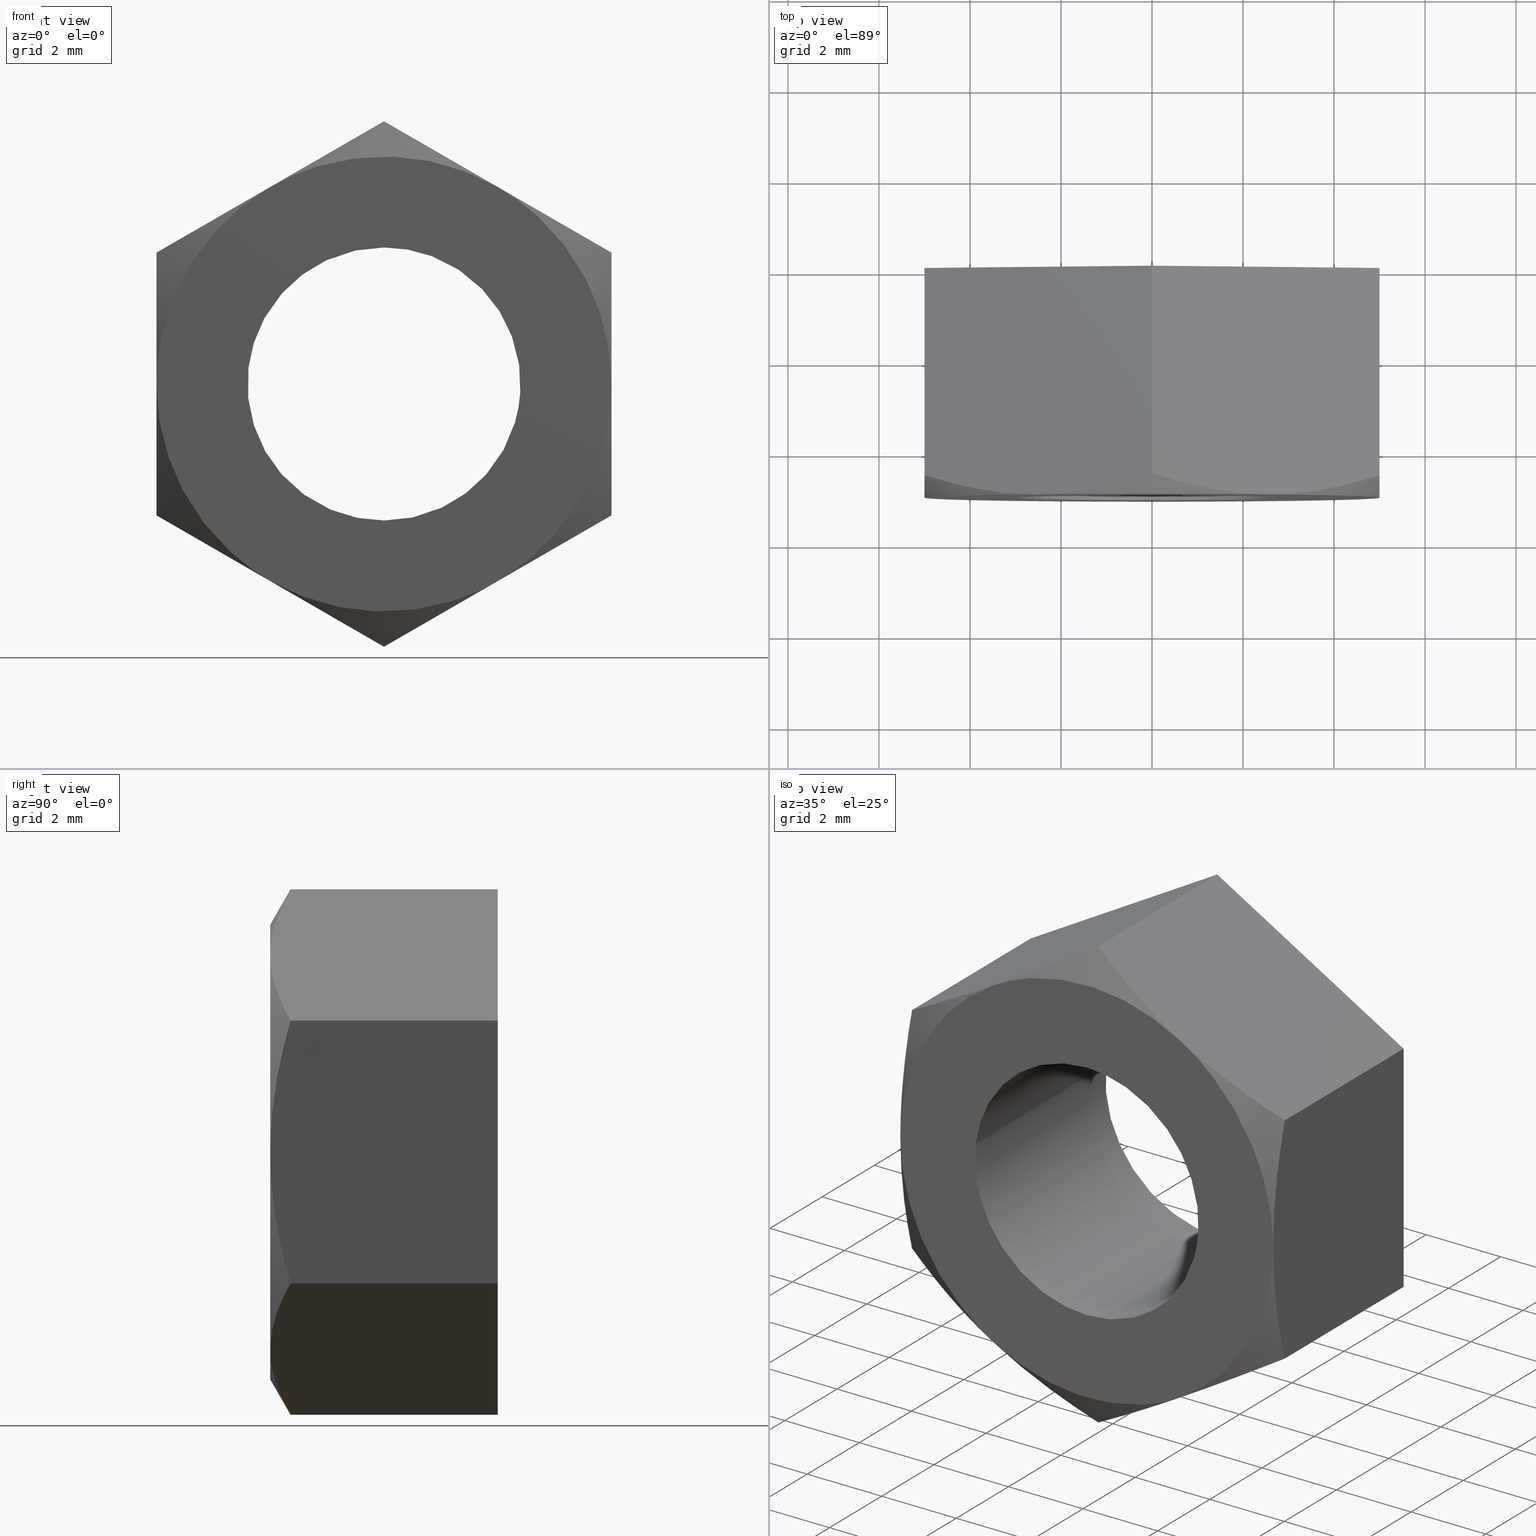
[diagram: canonical four-view strip — front | top / right | iso, engineering-drawing reading convention]
A machine part, canonical four-view strip (front | top / right | iso — engineering-drawing reading convention). The complete STEP part file that produces these views, byte-faithful:
ISO-10303-21;
HEADER;
/****************************************************************
 * Generated by software with PDE/Lib inside                    *
 * PDElib Version 4.4.1-0003, patched  Thursday August 19 11:58 *
 * International Technegroup Inc. (www.iti-oh.com)              *
 ****************************************************************/
FILE_DESCRIPTION((''),'2;1');
FILE_NAME('','2005-07-15T17:29:00',(''),(''),'','CADfix','');
FILE_SCHEMA(('AUTOMOTIVE_DESIGN'));
ENDSEC;
DATA;
#5=APPLICATION_CONTEXT('automotive design');
#6=APPLICATION_PROTOCOL_DEFINITION('Draft International Standard','automotive_design',1998,#5);
#7=PRODUCT_CONTEXT('None',#5,'mechanical');
#8=PRODUCT('nut','','None',(#7));
#9=PRODUCT_RELATED_PRODUCT_CATEGORY('part','description',(#8));
#10=PRODUCT_DEFINITION_FORMATION('None','None',#8);
#11=PRODUCT_DEFINITION_CONTEXT('part definition',#5,'design');
#12=PRODUCT_DEFINITION('None','None',#10,#11);
#18=(NAMED_UNIT(*)PLANE_ANGLE_UNIT()SI_UNIT($,.RADIAN.));
#19=DIMENSIONAL_EXPONENTS(0.0,0.0,0.0,0.0,0.0,0.0,0.0);
#20=PLANE_ANGLE_MEASURE_WITH_UNIT(PLANE_ANGLE_MEASURE(0.017453292500000),#18);
#24=(CONVERSION_BASED_UNIT('DEGREE',#20)NAMED_UNIT(#19)PLANE_ANGLE_UNIT());
#28=(NAMED_UNIT(*)SI_UNIT($,.STERADIAN.)SOLID_ANGLE_UNIT());
#32=(LENGTH_UNIT()NAMED_UNIT(*)SI_UNIT(.MILLI.,.METRE.));
#34=UNCERTAINTY_MEASURE_WITH_UNIT(LENGTH_MEASURE(0.001000000000000),#32,'DISTANCE_ACCURACY_VALUE','');
#36=(GEOMETRIC_REPRESENTATION_CONTEXT(3)GLOBAL_UNCERTAINTY_ASSIGNED_CONTEXT((#34))GLOBAL_UNIT_ASSIGNED_CONTEXT((#24,#28,#32))REPRESENTATION_CONTEXT('None','None'));
#37=AXIS2_PLACEMENT_3D('',#38,#39,#40);
#38=CARTESIAN_POINT('',(0.0,0.0,0.0));
#39=DIRECTION('',(0.0,0.0,1.0));
#40=DIRECTION('',(1.0,0.0,0.0));
#41=ADVANCED_BREP_SHAPE_REPRESENTATION('',(#37,#773),#36);
#42=PRODUCT_DEFINITION_SHAPE('','',#12);
#43=SHAPE_DEFINITION_REPRESENTATION(#42,#41);
#44=CARTESIAN_POINT('',(-2.979028579091000,0.125000000000000,0.354102703970275));
#45=CARTESIAN_POINT('',(-2.989162846345817,0.125000000000000,0.268844185913933));
#46=CARTESIAN_POINT('',(-2.994404395265600,0.125000000000000,0.183145618604571));
#47=CARTESIAN_POINT('',(-3.177550013870171,0.125000000000000,-2.811258776661029));
#48=CARTESIAN_POINT('',(-0.183145618604571,0.125000000000000,-2.994404395265600));
#49=CARTESIAN_POINT('',(2.811258776661029,0.125000000000000,-3.177550013870171));
#50=CARTESIAN_POINT('',(2.994404395265600,0.125000000000000,-0.183145618604571));
#51=CARTESIAN_POINT('',(-2.979028579091000,-5.128125000000002,0.354102703970275));
#52=CARTESIAN_POINT('',(-2.989162846345817,-5.128125000000001,0.268844185913933));
#53=CARTESIAN_POINT('',(-2.994404395265600,-5.128125000000001,0.183145618604571));
#54=CARTESIAN_POINT('',(-3.177550013870171,-5.128125000000001,-2.811258776661029));
#55=CARTESIAN_POINT('',(-0.183145618604571,-5.128125000000001,-2.994404395265600));
#56=CARTESIAN_POINT('',(2.811258776661029,-5.128125000000001,-3.177550013870171));
#57=CARTESIAN_POINT('',(2.994404395265600,-5.128125000000001,-0.183145618604571));
#65=(BOUNDED_SURFACE()B_SPLINE_SURFACE(2,1,((#44,#51),(#45,#52),(#46,#53),(#47,#54),(#48,#55),(#49,#56),(#50,#57)),.UNSPECIFIED.,.F.,.F.,.U.)B_SPLINE_SURFACE_WITH_KNOTS((3,2,2,3),(2,2),(0.0,0.198822509939086,5.169385258416225,10.139948006893370),(0.0,5.253125000000002),.UNSPECIFIED.)GEOMETRIC_REPRESENTATION_ITEM()RATIONAL_B_SPLINE_SURFACE(((0.977505800795127,0.977505800795127),(0.988284271247462,0.988284271247462),(1.0,1.0),(0.707106781186548,0.707106781186548),(1.0,1.0),(0.707106781186548,0.707106781186548),(1.0,1.0)))REPRESENTATION_ITEM('')SURFACE());
#66=CARTESIAN_POINT('',(-2.979029048847217,-3.904214E-015,0.354098751916197));
#67=VERTEX_POINT('',#66);
#68=CARTESIAN_POINT('',(0.0,0.0,-3.0));
#69=VERTEX_POINT('',#68);
#70=CARTESIAN_POINT('',(-2.979029048847217,-3.904214E-015,0.354098751916197));
#71=CARTESIAN_POINT('',(-3.0,0.0,0.177670362038779));
#72=CARTESIAN_POINT('',(-3.0,0.0,0.0));
#73=CARTESIAN_POINT('',(-3.0,0.0,-3.0));
#74=CARTESIAN_POINT('',(0.0,0.0,-3.0));
#82=(BOUNDED_CURVE()B_SPLINE_CURVE(2,(#70,#71,#72,#73,#74),.UNSPECIFIED.,.F.,.U.)B_SPLINE_CURVE_WITH_KNOTS((3,2,3),(0.229562697719614,0.250000000000000,0.500000000000000),.UNSPECIFIED.)CURVE()GEOMETRIC_REPRESENTATION_ITEM()RATIONAL_B_SPLINE_CURVE((0.956027193637312,0.976056211004937,1.0,0.707106781186548,1.0))REPRESENTATION_ITEM(''));
#83=EDGE_CURVE('',#67,#69,#82,.T.);
#84=ORIENTED_EDGE('',*,*,#83,.F.);
#85=CARTESIAN_POINT('',(-2.979029043188417,-5.0,0.354098799524145));
#86=VERTEX_POINT('',#85);
#87=CARTESIAN_POINT('',(-2.979029048847217,-3.904214E-015,0.354098751916197));
#88=CARTESIAN_POINT('',(-2.979029043188417,-5.0,0.354098799524145));
#89=QUASI_UNIFORM_CURVE('',1,(#87,#88),.UNSPECIFIED.,.F.,.U.);
#90=EDGE_CURVE('',#67,#86,#89,.T.);
#91=ORIENTED_EDGE('',*,*,#90,.T.);
#92=CARTESIAN_POINT('',(0.0,-5.0,-3.0));
#93=VERTEX_POINT('',#92);
#94=CARTESIAN_POINT('',(-2.979029043188417,-5.0,0.354098799524145));
#95=CARTESIAN_POINT('',(-3.000000000000000,-5.0,0.177670386094396));
#96=CARTESIAN_POINT('',(-3.0,-5.0,0.0));
#97=CARTESIAN_POINT('',(-3.0,-5.000000000000001,-3.0));
#98=CARTESIAN_POINT('',(0.0,-5.0,-3.0));
#106=(BOUNDED_CURVE()B_SPLINE_CURVE(2,(#94,#95,#96,#97,#98),.UNSPECIFIED.,.F.,.U.)B_SPLINE_CURVE_WITH_KNOTS((3,2,3),(0.229562695018767,0.250000000000000,0.500000000000000),.UNSPECIFIED.)CURVE()GEOMETRIC_REPRESENTATION_ITEM()RATIONAL_B_SPLINE_CURVE((0.956027188343531,0.976056207840698,1.0,0.707106781186548,1.0))REPRESENTATION_ITEM(''));
#107=EDGE_CURVE('',#86,#93,#106,.T.);
#108=ORIENTED_EDGE('',*,*,#107,.T.);
#109=CARTESIAN_POINT('',(2.994404452998527,-5.0,-0.183144674674689));
#110=VERTEX_POINT('',#109);
#111=CARTESIAN_POINT('',(0.0,-5.0,-3.0));
#112=CARTESIAN_POINT('',(2.822119983282192,-5.0,-3.0));
#113=CARTESIAN_POINT('',(2.994404452998527,-5.000000000000001,-0.183144674674689));
#121=(BOUNDED_CURVE()B_SPLINE_CURVE(2,(#111,#112,#113),.UNSPECIFIED.,.F.,.U.)B_SPLINE_CURVE_WITH_KNOTS((3,3),(0.500000000000000,0.739333071026264),.UNSPECIFIED.)CURVE()GEOMETRIC_REPRESENTATION_ITEM()RATIONAL_B_SPLINE_CURVE((1.0,0.719603865834435,0.976072274818767))REPRESENTATION_ITEM(''));
#122=EDGE_CURVE('',#93,#110,#121,.T.);
#123=ORIENTED_EDGE('',*,*,#122,.T.);
#124=CARTESIAN_POINT('',(2.994404453701684,-1.568190E-015,-0.183144663178055));
#125=VERTEX_POINT('',#124);
#126=CARTESIAN_POINT('',(2.994404453701684,-1.568190E-015,-0.183144663178055));
#127=CARTESIAN_POINT('',(2.994404452998527,-5.0,-0.183144674674689));
#128=QUASI_UNIFORM_CURVE('',1,(#126,#127),.UNSPECIFIED.,.F.,.U.);
#129=EDGE_CURVE('',#125,#110,#128,.T.);
#130=ORIENTED_EDGE('',*,*,#129,.F.);
#131=CARTESIAN_POINT('',(0.0,0.0,-3.0));
#132=CARTESIAN_POINT('',(2.822120004993013,0.0,-3.000000000000001));
#133=CARTESIAN_POINT('',(2.994404453701684,-1.568190E-015,-0.183144663178055));
#141=(BOUNDED_CURVE()B_SPLINE_CURVE(2,(#131,#132,#133),.UNSPECIFIED.,.F.,.U.)B_SPLINE_CURVE_WITH_KNOTS((3,3),(0.500000000000000,0.739333072351207),.UNSPECIFIED.)CURVE()GEOMETRIC_REPRESENTATION_ITEM()RATIONAL_B_SPLINE_CURVE((1.0,0.719603864282169,0.976072277658373))REPRESENTATION_ITEM(''));
#142=EDGE_CURVE('',#69,#125,#141,.T.);
#143=ORIENTED_EDGE('',*,*,#142,.F.);
#144=EDGE_LOOP('',(#84,#91,#108,#123,#130,#143));
#145=FACE_OUTER_BOUND('',#144,.T.);
#146=ADVANCED_FACE('',(#145),#65,.F.);
#147=CARTESIAN_POINT('',(2.994404395265600,0.125000000000000,-0.183145618604571));
#148=CARTESIAN_POINT('',(3.177550013870171,0.125000000000000,2.811258776661029));
#149=CARTESIAN_POINT('',(0.183145618604571,0.125000000000000,2.994404395265600));
#150=CARTESIAN_POINT('',(-2.644630472518504,0.125000000000000,3.167358590197582));
#151=CARTESIAN_POINT('',(-2.979028579091000,0.125000000000000,0.354102703970275));
#152=CARTESIAN_POINT('',(2.994404395265600,-5.128125000000001,-0.183145618604571));
#153=CARTESIAN_POINT('',(3.177550013870171,-5.128125000000001,2.811258776661029));
#154=CARTESIAN_POINT('',(0.183145618604571,-5.128125000000001,2.994404395265600));
#155=CARTESIAN_POINT('',(-2.644630472518504,-5.128125000000000,3.167358590197582));
#156=CARTESIAN_POINT('',(-2.979028579091000,-5.128125000000002,0.354102703970275));
#164=(BOUNDED_SURFACE()B_SPLINE_SURFACE(2,1,((#147,#152),(#148,#153),(#149,#154),(#150,#155),(#151,#156)),.UNSPECIFIED.,.F.,.F.,.U.)B_SPLINE_SURFACE_WITH_KNOTS((3,2,3),(2,2),(0.0,4.970562748477139,9.742302987015194),(0.0,5.253125000000002),.UNSPECIFIED.)GEOMETRIC_REPRESENTATION_ITEM()RATIONAL_B_SPLINE_SURFACE(((1.0,1.0),(0.707106781186548,0.707106781186548),(1.0,1.0),(0.718822509939086,0.718822509939086),(0.977505800795127,0.977505800795127)))REPRESENTATION_ITEM('')SURFACE());
#165=CARTESIAN_POINT('',(0.0,0.0,3.0));
#166=VERTEX_POINT('',#165);
#167=CARTESIAN_POINT('',(0.0,0.0,3.0));
#168=CARTESIAN_POINT('',(-2.664527137563535,0.0,3.0));
#169=CARTESIAN_POINT('',(-2.979029048847217,-3.904214E-015,0.354098751916197));
#177=(BOUNDED_CURVE()B_SPLINE_CURVE(2,(#167,#168,#169),.UNSPECIFIED.,.F.,.U.)B_SPLINE_CURVE_WITH_KNOTS((3,3),(0.0,0.229562697719614),.UNSPECIFIED.)CURVE()GEOMETRIC_REPRESENTATION_ITEM()RATIONAL_B_SPLINE_CURVE((1.0,0.731050570181611,0.956027193637312))REPRESENTATION_ITEM(''));
#178=EDGE_CURVE('',#166,#67,#177,.T.);
#179=ORIENTED_EDGE('',*,*,#178,.F.);
#180=CARTESIAN_POINT('',(2.994404453701684,-1.568190E-015,-0.183144663178055));
#181=CARTESIAN_POINT('',(3.0,0.0,-0.091657331790355));
#182=CARTESIAN_POINT('',(3.0,0.0,0.0));
#183=CARTESIAN_POINT('',(3.0,0.0,3.0));
#184=CARTESIAN_POINT('',(0.0,0.0,3.0));
#192=(BOUNDED_CURVE()B_SPLINE_CURVE(2,(#180,#181,#182,#183,#184),.UNSPECIFIED.,.F.,.U.)B_SPLINE_CURVE_WITH_KNOTS((3,2,3),(0.739333072351208,0.750000000000000,1.0),.UNSPECIFIED.)CURVE()GEOMETRIC_REPRESENTATION_ITEM()RATIONAL_B_SPLINE_CURVE((0.976072277658375,0.987502916904380,1.0,0.707106781186548,1.0))REPRESENTATION_ITEM(''));
#193=EDGE_CURVE('',#125,#166,#192,.T.);
#194=ORIENTED_EDGE('',*,*,#193,.F.);
#195=ORIENTED_EDGE('',*,*,#129,.T.);
#196=CARTESIAN_POINT('',(0.0,-5.0,3.0));
#197=VERTEX_POINT('',#196);
#198=CARTESIAN_POINT('',(2.994404452998527,-5.0,-0.183144674674689));
#199=CARTESIAN_POINT('',(3.000000000000000,-5.0,-0.091657343319225));
#200=CARTESIAN_POINT('',(3.0,-5.0,0.0));
#201=CARTESIAN_POINT('',(3.0,-5.000000000000001,3.0));
#202=CARTESIAN_POINT('',(0.0,-5.0,3.0));
#210=(BOUNDED_CURVE()B_SPLINE_CURVE(2,(#198,#199,#200,#201,#202),.UNSPECIFIED.,.F.,.U.)B_SPLINE_CURVE_WITH_KNOTS((3,2,3),(0.739333071026264,0.750000000000000,1.0),.UNSPECIFIED.)CURVE()GEOMETRIC_REPRESENTATION_ITEM()RATIONAL_B_SPLINE_CURVE((0.976072274818767,0.987502915352112,1.0,0.707106781186548,1.0))REPRESENTATION_ITEM(''));
#211=EDGE_CURVE('',#110,#197,#210,.T.);
#212=ORIENTED_EDGE('',*,*,#211,.T.);
#213=CARTESIAN_POINT('',(0.0,-5.0,3.0));
#214=CARTESIAN_POINT('',(-2.664527094681900,-5.0,3.000000000000000));
#215=CARTESIAN_POINT('',(-2.979029043188417,-5.0,0.354098799524145));
#223=(BOUNDED_CURVE()B_SPLINE_CURVE(2,(#213,#214,#215),.UNSPECIFIED.,.F.,.U.)B_SPLINE_CURVE_WITH_KNOTS((3,3),(0.0,0.229562695018767),.UNSPECIFIED.)CURVE()GEOMETRIC_REPRESENTATION_ITEM()RATIONAL_B_SPLINE_CURVE((1.0,0.731050573345850,0.956027188343531))REPRESENTATION_ITEM(''));
#224=EDGE_CURVE('',#197,#86,#223,.T.);
#225=ORIENTED_EDGE('',*,*,#224,.T.);
#226=ORIENTED_EDGE('',*,*,#90,.F.);
#227=EDGE_LOOP('',(#179,#194,#195,#212,#225,#226));
#228=FACE_OUTER_BOUND('',#227,.T.);
#229=ADVANCED_FACE('',(#228),#164,.F.);
#230=CARTESIAN_POINT('',(-5.499498035232104,0.0,6.350274189887204));
#231=CARTESIAN_POINT('',(-5.499498035232104,0.0,-6.350274602840212));
#232=CARTESIAN_POINT('',(5.499500156289713,0.0,6.350274189887204));
#233=CARTESIAN_POINT('',(5.499500156289713,0.0,-6.350274602840212));
#234=B_SPLINE_SURFACE_WITH_KNOTS('',1,1,((#230,#232),(#231,#233)),.UNSPECIFIED.,.F.,.F.,.U.,(2,2),(2,2),(0.0,12.700548792727419),(0.0,10.998998191521819),.UNSPECIFIED.);
#235=CARTESIAN_POINT('',(-4.999997968349340,0.0,2.886752518922210));
#236=VERTEX_POINT('',#235);
#237=CARTESIAN_POINT('',(-4.999997968349329,0.0,-2.886752518922215));
#238=VERTEX_POINT('',#237);
#239=CARTESIAN_POINT('',(-4.999997968349340,0.0,2.886752518922210));
#240=CARTESIAN_POINT('',(-4.999997968349329,0.0,-2.886752518922215));
#241=QUASI_UNIFORM_CURVE('',1,(#239,#240),.UNSPECIFIED.,.F.,.U.);
#242=EDGE_CURVE('',#236,#238,#241,.T.);
#243=ORIENTED_EDGE('',*,*,#242,.F.);
#244=CARTESIAN_POINT('',(0.000002031650682,0.0,5.773501518922211));
#245=VERTEX_POINT('',#244);
#246=CARTESIAN_POINT('',(0.000002031650682,0.0,5.773501518922211));
#247=CARTESIAN_POINT('',(-4.999997968349340,0.0,2.886752518922210));
#248=QUASI_UNIFORM_CURVE('',1,(#246,#247),.UNSPECIFIED.,.F.,.U.);
#249=EDGE_CURVE('',#245,#236,#248,.T.);
#250=ORIENTED_EDGE('',*,*,#249,.F.);
#251=CARTESIAN_POINT('',(5.0,0.0,2.886749000000000));
#252=VERTEX_POINT('',#251);
#253=CARTESIAN_POINT('',(5.0,0.0,2.886749000000000));
#254=CARTESIAN_POINT('',(0.000002031650682,0.0,5.773501518922211));
#255=QUASI_UNIFORM_CURVE('',1,(#253,#254),.UNSPECIFIED.,.F.,.U.);
#256=EDGE_CURVE('',#252,#245,#255,.T.);
#257=ORIENTED_EDGE('',*,*,#256,.F.);
#258=CARTESIAN_POINT('',(4.999997968349340,0.0,-2.886752518922210));
#259=VERTEX_POINT('',#258);
#260=CARTESIAN_POINT('',(4.999997968349340,0.0,-2.886752518922210));
#261=CARTESIAN_POINT('',(5.0,0.0,2.886749000000000));
#262=QUASI_UNIFORM_CURVE('',1,(#260,#261),.UNSPECIFIED.,.F.,.U.);
#263=EDGE_CURVE('',#259,#252,#262,.T.);
#264=ORIENTED_EDGE('',*,*,#263,.F.);
#265=CARTESIAN_POINT('',(-0.000002031650684,0.0,-5.773501518922211));
#266=VERTEX_POINT('',#265);
#267=CARTESIAN_POINT('',(-0.000002031650684,0.0,-5.773501518922211));
#268=CARTESIAN_POINT('',(4.999997968349340,0.0,-2.886752518922210));
#269=QUASI_UNIFORM_CURVE('',1,(#267,#268),.UNSPECIFIED.,.F.,.U.);
#270=EDGE_CURVE('',#266,#259,#269,.T.);
#271=ORIENTED_EDGE('',*,*,#270,.F.);
#272=CARTESIAN_POINT('',(-4.999997968349329,0.0,-2.886752518922215));
#273=CARTESIAN_POINT('',(-0.000002031650684,0.0,-5.773501518922211));
#274=QUASI_UNIFORM_CURVE('',1,(#272,#273),.UNSPECIFIED.,.F.,.U.);
#275=EDGE_CURVE('',#238,#266,#274,.T.);
#276=ORIENTED_EDGE('',*,*,#275,.F.);
#277=EDGE_LOOP('',(#243,#250,#257,#264,#271,#276));
#278=FACE_OUTER_BOUND('',#277,.T.);
#279=ORIENTED_EDGE('',*,*,#142,.T.);
#280=ORIENTED_EDGE('',*,*,#193,.T.);
#281=ORIENTED_EDGE('',*,*,#178,.T.);
#282=ORIENTED_EDGE('',*,*,#83,.T.);
#283=EDGE_LOOP('',(#279,#280,#281,#282));
#284=FACE_BOUND('',#283,.T.);
#285=ADVANCED_FACE('',(#278,#284),#234,.F.);
#286=CARTESIAN_POINT('',(0.249750680943751,-5.249749990309030,-5.917696314769450));
#287=CARTESIAN_POINT('',(-5.249750859757750,-5.249749990309030,-2.742557619836676));
#288=CARTESIAN_POINT('',(0.249750680943751,0.249750124419481,-5.917696314769450));
#289=CARTESIAN_POINT('',(-5.249750859757750,0.249750124419481,-2.742557619836676));
#290=B_SPLINE_SURFACE_WITH_KNOTS('',1,1,((#286,#288),(#287,#289)),.UNSPECIFIED.,.F.,.F.,.U.,(2,2),(2,2),(0.0,6.350277389865546),(0.0,5.499500114728511),.UNSPECIFIED.);
#291=CARTESIAN_POINT('',(-0.000002031652880,-4.553409602993680,-5.773507759460920));
#292=VERTEX_POINT('',#291);
#293=CARTESIAN_POINT('',(-2.500000000000000,-5.0,-4.330127018922216));
#294=VERTEX_POINT('',#293);
#295=CARTESIAN_POINT('',(-0.000002031652880,-4.553409602993680,-5.773507759460920));
#296=CARTESIAN_POINT('',(-0.408203912893516,-4.689478620133048,-5.537831253856557));
#297=CARTESIAN_POINT('',(-0.819382131306384,-4.801624442180716,-5.300436359742333));
#298=CARTESIAN_POINT('',(-1.442581488690351,-4.918143823333554,-4.940630485660208));
#299=CARTESIAN_POINT('',(-1.651389183835703,-4.948346392766203,-4.820074787747974));
#300=CARTESIAN_POINT('',(-2.071436573135649,-4.989203616394015,-4.577559277096571));
#301=CARTESIAN_POINT('',(-2.282678368845466,-4.999841378714153,-4.455598251024326));
#302=CARTESIAN_POINT('',(-2.496815957580813,-4.999999419169799,-4.331965334432526));
#303=CARTESIAN_POINT('',(-2.498407920093585,-5.000000004344116,-4.331046210566043));
#304=CARTESIAN_POINT('',(-2.500000000000000,-5.0,-4.330127018922216));
#305=B_SPLINE_CURVE_WITH_KNOTS('',3,(#295,#296,#297,#298,#299,#300,#301,#302,#303,#304),.UNSPECIFIED.,.F.,.U.,(4,2,2,2,4),(0.0,0.250000000000000,0.375000000000000,0.500000000000000,0.500936175918565),.UNSPECIFIED.);
#306=EDGE_CURVE('',#292,#294,#305,.T.);
#307=ORIENTED_EDGE('',*,*,#306,.T.);
#308=CARTESIAN_POINT('',(-5.000003372813290,-4.553409602993680,-2.886755639193470));
#309=VERTEX_POINT('',#308);
#310=CARTESIAN_POINT('',(-2.500000000000000,-5.0,-4.330127018922216));
#311=CARTESIAN_POINT('',(-2.604696918892965,-4.999999141939918,-4.269680479853555));
#312=CARTESIAN_POINT('',(-2.709901508793534,-4.997448906623655,-4.208940838862293));
#313=CARTESIAN_POINT('',(-2.920962553253226,-4.987251126109239,-4.087085205897683));
#314=CARTESIAN_POINT('',(-3.026919978143381,-4.979538526477759,-4.025910918943936));
#315=CARTESIAN_POINT('',(-3.343731949500059,-4.949009382118800,-3.843000224315569));
#316=CARTESIAN_POINT('',(-3.553523713761450,-4.918784211642863,-3.721877414062005));
#317=CARTESIAN_POINT('',(-4.179163917903638,-4.802071499223087,-3.360665437132666));
#318=CARTESIAN_POINT('',(-4.591291823068294,-4.689648211307102,-3.122724321577582));
#319=CARTESIAN_POINT('',(-5.000003372813290,-4.553409602993680,-2.886755639193470));
#320=B_SPLINE_CURVE_WITH_KNOTS('',3,(#310,#311,#312,#313,#314,#315,#316,#317,#318,#319),.UNSPECIFIED.,.F.,.U.,(4,2,2,2,4),(0.500936175918565,0.562500000000000,0.625000000000000,0.750000000000000,1.0),.UNSPECIFIED.);
#321=EDGE_CURVE('',#294,#309,#320,.T.);
#322=ORIENTED_EDGE('',*,*,#321,.T.);
#323=CARTESIAN_POINT('',(-4.999997968349329,0.0,-2.886752518922215));
#324=CARTESIAN_POINT('',(-5.000003372813290,-4.553409602993680,-2.886755639193470));
#325=QUASI_UNIFORM_CURVE('',1,(#323,#324),.UNSPECIFIED.,.F.,.U.);
#326=EDGE_CURVE('',#238,#309,#325,.T.);
#327=ORIENTED_EDGE('',*,*,#326,.F.);
#328=ORIENTED_EDGE('',*,*,#275,.T.);
#329=CARTESIAN_POINT('',(-0.000002031650684,0.0,-5.773501518922211));
#330=CARTESIAN_POINT('',(-0.000002031652880,-4.553409602993680,-5.773507759460920));
#331=QUASI_UNIFORM_CURVE('',1,(#329,#330),.UNSPECIFIED.,.F.,.U.);
#332=EDGE_CURVE('',#266,#292,#331,.T.);
#333=ORIENTED_EDGE('',*,*,#332,.T.);
#334=EDGE_LOOP('',(#307,#322,#327,#328,#333));
#335=FACE_OUTER_BOUND('',#334,.T.);
#336=ADVANCED_FACE('',(#335),#290,.T.);
#337=CARTESIAN_POINT('',(5.249750815301801,-5.249749990309030,-2.742557645503335));
#338=CARTESIAN_POINT('',(-0.249753683967008,-5.249749990309030,-5.917698048565737));
#339=CARTESIAN_POINT('',(5.249750815301801,0.249750124419481,-2.742557645503335));
#340=CARTESIAN_POINT('',(-0.249753683967008,0.249750124419481,-5.917698048565737));
#341=B_SPLINE_SURFACE_WITH_KNOTS('',1,1,((#337,#339),(#338,#340)),.UNSPECIFIED.,.F.,.F.,.U.,(2,2),(2,2),(0.0,6.350280806124809),(0.0,5.499500114728511),.UNSPECIFIED.);
#342=CARTESIAN_POINT('',(5.000003372813290,-4.553409602993680,-2.886755639193465));
#343=VERTEX_POINT('',#342);
#344=CARTESIAN_POINT('',(2.500000000000000,-5.0,-4.330127018922216));
#345=VERTEX_POINT('',#344);
#346=CARTESIAN_POINT('',(5.000003372813290,-4.553409602993680,-2.886755639193465));
#347=CARTESIAN_POINT('',(4.591800351519336,-4.689478700047564,-3.122430723834567));
#348=CARTESIAN_POINT('',(4.180620990038048,-4.801624573892675,-3.359824199841751));
#349=CARTESIAN_POINT('',(3.557419910390354,-4.918143962773445,-3.719627953597012));
#350=CARTESIAN_POINT('',(3.348611639876511,-4.948346523087345,-3.840182945875693));
#351=CARTESIAN_POINT('',(2.928563096943392,-4.989203702026397,-4.082697047843556));
#352=CARTESIAN_POINT('',(2.717320722964078,-4.999841428735054,-4.204657370869383));
#353=CARTESIAN_POINT('',(2.503183050407779,-4.999999419531586,-4.328289291672485));
#354=CARTESIAN_POINT('',(2.501591583864261,-5.000000004340188,-4.329208121429816));
#355=CARTESIAN_POINT('',(2.500000000000000,-5.0,-4.330127018922216));
#356=B_SPLINE_CURVE_WITH_KNOTS('',3,(#346,#347,#348,#349,#350,#351,#352,#353,#354,#355),.UNSPECIFIED.,.F.,.U.,(4,2,2,2,4),(0.0,0.250000000000000,0.374999999999999,0.499999999999999,0.500935881726906),.UNSPECIFIED.);
#357=EDGE_CURVE('',#343,#345,#356,.T.);
#358=ORIENTED_EDGE('',*,*,#357,.T.);
#359=CARTESIAN_POINT('',(2.500000000000000,-5.0,-4.330127018922216));
#360=CARTESIAN_POINT('',(2.395302691109973,-4.999999180456554,-4.390574197682315));
#361=CARTESIAN_POINT('',(2.290097704329303,-4.997448956096080,-4.451314485701285));
#362=CARTESIAN_POINT('',(2.079036388718640,-4.987251169289275,-4.573171116276703));
#363=CARTESIAN_POINT('',(1.973079080158117,-4.979538576180672,-4.634345759674650));
#364=CARTESIAN_POINT('',(1.656267459934279,-4.949009445233116,-4.817257522120471));
#365=CARTESIAN_POINT('',(1.446475932618204,-4.918784275521857,-4.938381042232555));
#366=CARTESIAN_POINT('',(0.820836445799986,-4.802071551126016,-5.299595144014635));
#367=CARTESIAN_POINT('',(0.408709027332946,-4.689648237257094,-5.537537669942531));
#368=CARTESIAN_POINT('',(-0.000002031652880,-4.553409602993680,-5.773507759460920));
#369=B_SPLINE_CURVE_WITH_KNOTS('',3,(#359,#360,#361,#362,#363,#364,#365,#366,#367,#368),.UNSPECIFIED.,.F.,.U.,(4,2,2,2,4),(0.500935881726906,0.562499999999999,0.624999999999999,0.749999999999999,1.0),.UNSPECIFIED.);
#370=EDGE_CURVE('',#345,#292,#369,.T.);
#371=ORIENTED_EDGE('',*,*,#370,.T.);
#372=ORIENTED_EDGE('',*,*,#332,.F.);
#373=ORIENTED_EDGE('',*,*,#270,.T.);
#374=CARTESIAN_POINT('',(4.999997968349340,0.0,-2.886752518922210));
#375=CARTESIAN_POINT('',(5.000003372813290,-4.553409602993680,-2.886755639193465));
#376=QUASI_UNIFORM_CURVE('',1,(#374,#375),.UNSPECIFIED.,.F.,.U.);
#377=EDGE_CURVE('',#259,#343,#376,.T.);
#378=ORIENTED_EDGE('',*,*,#377,.T.);
#379=EDGE_LOOP('',(#358,#371,#372,#373,#378));
#380=FACE_OUTER_BOUND('',#379,.T.);
#381=ADVANCED_FACE('',(#380),#341,.T.);
#382=CARTESIAN_POINT('',(5.0,-5.249749990309030,3.175138821662350));
#383=CARTESIAN_POINT('',(5.0,-5.249749990309030,-3.175142495445905));
#384=CARTESIAN_POINT('',(5.0,0.249750124419480,3.175138821662350));
#385=CARTESIAN_POINT('',(5.0,0.249750124419480,-3.175142495445905));
#386=B_SPLINE_SURFACE_WITH_KNOTS('',1,1,((#382,#384),(#383,#385)),.UNSPECIFIED.,.F.,.F.,.U.,(2,2),(2,2),(0.0,6.350281317108255),(0.0,5.499500114728510),.UNSPECIFIED.);
#387=CARTESIAN_POINT('',(5.000005404466170,-4.553409602993680,2.886752120267455));
#388=VERTEX_POINT('',#387);
#389=CARTESIAN_POINT('',(5.0,-5.0,-8.673617E-016));
#390=VERTEX_POINT('',#389);
#391=CARTESIAN_POINT('',(5.000005404466170,-4.553409602993680,2.886752120267455));
#392=CARTESIAN_POINT('',(5.000004513169780,-4.688116607231213,2.420118757533514));
#393=CARTESIAN_POINT('',(5.000003617053969,-4.800307397922206,1.947366246797333));
#394=CARTESIAN_POINT('',(5.000002487831893,-4.898136896506681,1.344900274219635));
#395=CARTESIAN_POINT('',(5.000002261531787,-4.915573824749347,1.223828497007833));
#396=CARTESIAN_POINT('',(5.000001807941939,-4.945824113510175,0.980428412699836));
#397=CARTESIAN_POINT('',(5.000001580304323,-4.958651955178178,0.857912085975823));
#398=CARTESIAN_POINT('',(5.000000898153133,-4.989584399491625,0.489611514541412));
#399=CARTESIAN_POINT('',(5.000000447689589,-4.999974933069924,0.244848958079583));
#400=CARTESIAN_POINT('',(5.000000001057662,-4.999999984358408,0.000578459506291));
#401=CARTESIAN_POINT('',(5.000000000528828,-4.999999999459415,0.000289229204407));
#402=CARTESIAN_POINT('',(5.0,-5.0,-8.673617E-016));
#403=B_SPLINE_CURVE_WITH_KNOTS('',3,(#391,#392,#393,#394,#395,#396,#397,#398,#399,#400,#401,#402),.UNSPECIFIED.,.F.,.U.,(4,2,2,2,2,4),(0.499851816799926,0.749851816799926,0.812351816799926,0.874851816799926,0.999851816799926,1.0),.UNSPECIFIED.);
#404=EDGE_CURVE('',#388,#390,#403,.T.);
#405=ORIENTED_EDGE('',*,*,#404,.T.);
#406=CARTESIAN_POINT('',(5.0,-5.0,-8.673617E-016));
#407=CARTESIAN_POINT('',(5.000000278066759,-4.999999381140824,-0.243690208678995));
#408=CARTESIAN_POINT('',(5.000000557069144,-4.989662450478551,-0.486601332153735));
#409=CARTESIAN_POINT('',(5.000001117185601,-4.949305695528569,-0.971229237509199));
#410=CARTESIAN_POINT('',(5.000001398300466,-4.919277123627644,-1.212945360050677));
#411=CARTESIAN_POINT('',(5.000001962129272,-4.841554158489500,-1.695046068286999));
#412=CARTESIAN_POINT('',(5.000002244965130,-4.793852497305100,-1.935536373870069));
#413=CARTESIAN_POINT('',(5.000002811501803,-4.683430768834334,-2.414951643881277));
#414=CARTESIAN_POINT('',(5.000003092898107,-4.621197994619315,-2.651932379907174));
#415=CARTESIAN_POINT('',(5.000003372813290,-4.553409602993680,-2.886755639193465));
#416=B_SPLINE_CURVE_WITH_KNOTS('',3,(#406,#407,#408,#409,#410,#411,#412,#413,#414,#415),.UNSPECIFIED.,.F.,.U.,(4,2,2,2,4),(0.0,0.124851816799926,0.249851816799926,0.374851816799926,0.499851816799926),.UNSPECIFIED.);
#417=EDGE_CURVE('',#390,#343,#416,.T.);
#418=ORIENTED_EDGE('',*,*,#417,.T.);
#419=ORIENTED_EDGE('',*,*,#377,.F.);
#420=ORIENTED_EDGE('',*,*,#263,.T.);
#421=CARTESIAN_POINT('',(5.0,0.0,2.886749000000000));
#422=CARTESIAN_POINT('',(5.000005404466170,-4.553409602993680,2.886752120267455));
#423=QUASI_UNIFORM_CURVE('',1,(#421,#422),.UNSPECIFIED.,.F.,.U.);
#424=EDGE_CURVE('',#252,#388,#423,.T.);
#425=ORIENTED_EDGE('',*,*,#424,.T.);
#426=EDGE_LOOP('',(#405,#418,#419,#420,#425));
#427=FACE_OUTER_BOUND('',#426,.T.);
#428=ADVANCED_FACE('',(#427),#386,.T.);
#429=CARTESIAN_POINT('',(-0.249750815301782,-5.249749990309030,5.917696392341094));
#430=CARTESIAN_POINT('',(5.249753683967027,-5.249749990309030,2.742555989278689));
#431=CARTESIAN_POINT('',(-0.249750815301782,0.249750124419480,5.917696392341094));
#432=CARTESIAN_POINT('',(5.249753683967027,0.249750124419480,2.742555989278689));
#433=B_SPLINE_SURFACE_WITH_KNOTS('',1,1,((#429,#431),(#430,#432)),.UNSPECIFIED.,.F.,.F.,.U.,(2,2),(2,2),(0.0,6.350280806124809),(0.0,5.499500114728510),.UNSPECIFIED.);
#434=CARTESIAN_POINT('',(0.000002031652878,-4.553409602993680,5.773507759460920));
#435=VERTEX_POINT('',#434);
#436=CARTESIAN_POINT('',(2.500000000000000,-5.0,4.330127018922216));
#437=VERTEX_POINT('',#436);
#438=CARTESIAN_POINT('',(0.000002031652878,-4.553409602993680,5.773507759460920));
#439=CARTESIAN_POINT('',(0.408204149830436,-4.689478699111678,5.537831117060359));
#440=CARTESIAN_POINT('',(0.819382608637364,-4.801624572350189,5.300436084153955));
#441=CARTESIAN_POINT('',(1.442582335215381,-4.918143961140454,4.940629996916643));
#442=CARTESIAN_POINT('',(1.651390154863345,-4.948346521561144,4.820074227122492));
#443=CARTESIAN_POINT('',(2.071437796420834,-4.989203701023547,4.577558570829530));
#444=CARTESIAN_POINT('',(2.282679719890679,-4.999841428149256,4.455597470994699));
#445=CARTESIAN_POINT('',(2.496816944616442,-4.999999419527346,4.331964764564832));
#446=CARTESIAN_POINT('',(2.498408413647471,-5.000000004340231,4.331045925611371));
#447=CARTESIAN_POINT('',(2.500000000000000,-5.0,4.330127018922216));
#448=B_SPLINE_CURVE_WITH_KNOTS('',3,(#438,#439,#440,#441,#442,#443,#444,#445,#446,#447),.UNSPECIFIED.,.F.,.U.,(4,2,2,2,4),(0.0,0.250000000000000,0.375000000000000,0.500000000000000,0.500935885172205),.UNSPECIFIED.);
#449=EDGE_CURVE('',#435,#437,#448,.T.);
#450=ORIENTED_EDGE('',*,*,#449,.T.);
#451=CARTESIAN_POINT('',(2.500000000000000,-5.0,4.330127018922216));
#452=CARTESIAN_POINT('',(2.604697440279250,-4.999999180454779,4.269680082882529));
#453=CARTESIAN_POINT('',(2.709902559407321,-4.997448956423985,4.208940039614859));
#454=CARTESIAN_POINT('',(2.920964148095943,-4.987251170578753,4.087083897761970));
#455=CARTESIAN_POINT('',(3.026921597387174,-4.979538577819586,4.025909498668955));
#456=CARTESIAN_POINT('',(3.343733640387951,-4.949009447837367,3.842998468587121));
#457=CARTESIAN_POINT('',(3.553525450335410,-4.918784278651589,3.721875435982623));
#458=CARTESIAN_POINT('',(4.179165787010449,-4.802071554860436,3.360662794839334));
#459=CARTESIAN_POINT('',(4.591293774645260,-4.689648240014399,3.122721240173330));
#460=CARTESIAN_POINT('',(5.000005404466170,-4.553409602993680,2.886752120267455));
#461=B_SPLINE_CURVE_WITH_KNOTS('',3,(#451,#452,#453,#454,#455,#456,#457,#458,#459,#460),.UNSPECIFIED.,.F.,.U.,(4,2,2,2,4),(0.500935885172205,0.562500000000000,0.625000000000000,0.750000000000000,1.0),.UNSPECIFIED.);
#462=EDGE_CURVE('',#437,#388,#461,.T.);
#463=ORIENTED_EDGE('',*,*,#462,.T.);
#464=ORIENTED_EDGE('',*,*,#424,.F.);
#465=ORIENTED_EDGE('',*,*,#256,.T.);
#466=CARTESIAN_POINT('',(0.000002031650682,0.0,5.773501518922211));
#467=CARTESIAN_POINT('',(0.000002031652878,-4.553409602993680,5.773507759460920));
#468=QUASI_UNIFORM_CURVE('',1,(#466,#467),.UNSPECIFIED.,.F.,.U.);
#469=EDGE_CURVE('',#245,#435,#468,.T.);
#470=ORIENTED_EDGE('',*,*,#469,.T.);
#471=EDGE_LOOP('',(#450,#463,#464,#465,#470));
#472=FACE_OUTER_BOUND('',#471,.T.);
#473=ADVANCED_FACE('',(#472),#433,.T.);
#474=CARTESIAN_POINT('',(-5.249750815301801,-5.249749990309030,2.742557645503334));
#475=CARTESIAN_POINT('',(0.249753683967007,-5.249749990309030,5.917698048565737));
#476=CARTESIAN_POINT('',(-5.249750815301801,0.249750124419481,2.742557645503334));
#477=CARTESIAN_POINT('',(0.249753683967007,0.249750124419481,5.917698048565737));
#478=B_SPLINE_SURFACE_WITH_KNOTS('',1,1,((#474,#476),(#475,#477)),.UNSPECIFIED.,.F.,.F.,.U.,(2,2),(2,2),(0.0,6.350280806124808),(0.0,5.499500114728511),.UNSPECIFIED.);
#479=CARTESIAN_POINT('',(-5.000003372813290,-4.553409602993680,2.886755639193465));
#480=VERTEX_POINT('',#479);
#481=CARTESIAN_POINT('',(-2.500000000000000,-5.0,4.330127018922211));
#482=VERTEX_POINT('',#481);
#483=CARTESIAN_POINT('',(-5.000003372813290,-4.553409602993680,2.886755639193465));
#484=CARTESIAN_POINT('',(-4.591800351519335,-4.689478700047566,3.122430723834567));
#485=CARTESIAN_POINT('',(-4.180620990038047,-4.801624573892677,3.359824199841750));
#486=CARTESIAN_POINT('',(-3.557419910390353,-4.918143962773447,3.719627953597011));
#487=CARTESIAN_POINT('',(-3.348611639876510,-4.948346523087348,3.840182945875693));
#488=CARTESIAN_POINT('',(-2.928563096943389,-4.989203702026398,4.082697047843555));
#489=CARTESIAN_POINT('',(-2.717320722964074,-4.999841428735058,4.204657370869381));
#490=CARTESIAN_POINT('',(-2.503183050407777,-4.999999419531587,4.328289291672482));
#491=CARTESIAN_POINT('',(-2.501591583864260,-5.000000004340189,4.329208121429812));
#492=CARTESIAN_POINT('',(-2.500000000000000,-5.0,4.330127018922211));
#493=B_SPLINE_CURVE_WITH_KNOTS('',3,(#483,#484,#485,#486,#487,#488,#489,#490,#491,#492),.UNSPECIFIED.,.F.,.U.,(4,2,2,2,4),(0.0,0.250000000000000,0.374999999999999,0.499999999999999,0.500935881726905),.UNSPECIFIED.);
#494=EDGE_CURVE('',#480,#482,#493,.T.);
#495=ORIENTED_EDGE('',*,*,#494,.T.);
#496=CARTESIAN_POINT('',(-2.500000000000000,-5.0,4.330127018922211));
#497=CARTESIAN_POINT('',(-2.395302691109972,-4.999999180456554,4.390574197682310));
#498=CARTESIAN_POINT('',(-2.290097704329301,-4.997448956096083,4.451314485701281));
#499=CARTESIAN_POINT('',(-2.079036388718639,-4.987251169289277,4.573171116276702));
#500=CARTESIAN_POINT('',(-1.973079080158115,-4.979538576180673,4.634345759674647));
#501=CARTESIAN_POINT('',(-1.656267459934277,-4.949009445233118,4.817257522120468));
#502=CARTESIAN_POINT('',(-1.446475932618204,-4.918784275521857,4.938381042232552));
#503=CARTESIAN_POINT('',(-0.820836445799986,-4.802071551126015,5.299595144014633));
#504=CARTESIAN_POINT('',(-0.408709027332948,-4.689648237257094,5.537537669942529));
#505=CARTESIAN_POINT('',(0.000002031652878,-4.553409602993680,5.773507759460920));
#506=B_SPLINE_CURVE_WITH_KNOTS('',3,(#496,#497,#498,#499,#500,#501,#502,#503,#504,#505),.UNSPECIFIED.,.F.,.U.,(4,2,2,2,4),(0.500935881726905,0.562499999999999,0.625000000000000,0.750000000000000,1.0),.UNSPECIFIED.);
#507=EDGE_CURVE('',#482,#435,#506,.T.);
#508=ORIENTED_EDGE('',*,*,#507,.T.);
#509=ORIENTED_EDGE('',*,*,#469,.F.);
#510=ORIENTED_EDGE('',*,*,#249,.T.);
#511=CARTESIAN_POINT('',(-4.999997968349340,0.0,2.886752518922210));
#512=CARTESIAN_POINT('',(-5.000003372813290,-4.553409602993680,2.886755639193465));
#513=QUASI_UNIFORM_CURVE('',1,(#511,#512),.UNSPECIFIED.,.F.,.U.);
#514=EDGE_CURVE('',#236,#480,#513,.T.);
#515=ORIENTED_EDGE('',*,*,#514,.T.);
#516=EDGE_LOOP('',(#495,#508,#509,#510,#515));
#517=FACE_OUTER_BOUND('',#516,.T.);
#518=ADVANCED_FACE('',(#517),#478,.T.);
#519=CARTESIAN_POINT('',(-5.0,-5.249749990309030,-3.175142624753898));
#520=CARTESIAN_POINT('',(-5.0,-5.249749990309030,3.175142676373107));
#521=CARTESIAN_POINT('',(-5.0,0.249750124419480,-3.175142624753898));
#522=CARTESIAN_POINT('',(-5.0,0.249750124419480,3.175142676373107));
#523=B_SPLINE_SURFACE_WITH_KNOTS('',1,1,((#519,#521),(#520,#522)),.UNSPECIFIED.,.F.,.F.,.U.,(2,2),(2,2),(0.0,6.350285301127004),(0.0,5.499500114728510),.UNSPECIFIED.);
#524=CARTESIAN_POINT('',(-5.0,-5.0,-8.673617E-016));
#525=VERTEX_POINT('',#524);
#526=CARTESIAN_POINT('',(-5.000003372813290,-4.553409602993680,-2.886755639193470));
#527=CARTESIAN_POINT('',(-5.000003092897947,-4.621198033676750,-2.651932244610020));
#528=CARTESIAN_POINT('',(-5.000002811501480,-4.683430840540391,-2.414951370916639));
#529=CARTESIAN_POINT('',(-5.000002244964476,-4.793852616299644,-1.935535818876415));
#530=CARTESIAN_POINT('',(-5.000001962128453,-4.841554291469272,-1.695045371643561));
#531=CARTESIAN_POINT('',(-5.000001398299323,-4.919277261078482,-1.212944379269483));
#532=CARTESIAN_POINT('',(-5.000001117184296,-4.949305823435182,-0.971228114131839));
#533=CARTESIAN_POINT('',(-5.000000557068172,-4.989662486722621,-0.486600484815214));
#534=CARTESIAN_POINT('',(-5.000000278066275,-4.999999380907022,-0.243689783415205));
#535=CARTESIAN_POINT('',(-5.0,-5.0,-8.673617E-016));
#536=B_SPLINE_CURVE_WITH_KNOTS('',3,(#526,#527,#528,#529,#530,#531,#532,#533,#534,#535),.UNSPECIFIED.,.F.,.U.,(4,2,2,2,4),(0.0,0.125000000000000,0.250000000000000,0.375000000000000,0.499851526954844),.UNSPECIFIED.);
#537=EDGE_CURVE('',#309,#525,#536,.T.);
#538=ORIENTED_EDGE('',*,*,#537,.T.);
#539=CARTESIAN_POINT('',(-5.0,-5.0,-8.673617E-016));
#540=CARTESIAN_POINT('',(-5.000000000330676,-4.999999999550569,0.000289795127857));
#541=CARTESIAN_POINT('',(-5.000000000661355,-4.999999984483686,0.000579591357490));
#542=CARTESIAN_POINT('',(-5.000000279395408,-4.999974962729295,0.244850822462410));
#543=CARTESIAN_POINT('',(-5.000000560520049,-4.989584447000460,0.489613546258527));
#544=CARTESIAN_POINT('',(-5.000000986235985,-4.958652014956560,0.857914369568911));
#545=CARTESIAN_POINT('',(-5.000001128299728,-4.945824176363103,0.980430766482951));
#546=CARTESIAN_POINT('',(-5.000001411375410,-4.915573889714610,1.223830999792514));
#547=CARTESIAN_POINT('',(-5.000001552604448,-4.898136960887074,1.344902850979259));
#548=CARTESIAN_POINT('',(-5.000002257327700,-4.800307453105426,1.947369191359232));
#549=CARTESIAN_POINT('',(-5.000002816574342,-4.688116636074319,2.420121990006482));
#550=CARTESIAN_POINT('',(-5.000003372813290,-4.553409602993680,2.886755639193465));
#551=B_SPLINE_CURVE_WITH_KNOTS('',3,(#539,#540,#541,#542,#543,#544,#545,#546,#547,#548,#549,#550),.UNSPECIFIED.,.F.,.U.,(4,2,2,2,2,4),(0.499851526954844,0.500000000000000,0.625000000000000,0.687500000000000,0.750000000000000,1.0),.UNSPECIFIED.);
#552=EDGE_CURVE('',#525,#480,#551,.T.);
#553=ORIENTED_EDGE('',*,*,#552,.T.);
#554=ORIENTED_EDGE('',*,*,#514,.F.);
#555=ORIENTED_EDGE('',*,*,#242,.T.);
#556=ORIENTED_EDGE('',*,*,#326,.T.);
#557=EDGE_LOOP('',(#538,#553,#554,#555,#556));
#558=FACE_OUTER_BOUND('',#557,.T.);
#559=ADVANCED_FACE('',(#558),#523,.T.);
#560=CARTESIAN_POINT('',(-5.499499980618060,-5.0,-5.499498894162820));
#561=CARTESIAN_POINT('',(-5.499499980618060,-5.0,5.499498625941960));
#562=CARTESIAN_POINT('',(5.499500248838961,-5.0,-5.499498894162820));
#563=CARTESIAN_POINT('',(5.499500248838961,-5.0,5.499498625941960));
#564=B_SPLINE_SURFACE_WITH_KNOTS('',1,1,((#560,#562),(#561,#563)),.UNSPECIFIED.,.F.,.F.,.U.,(2,2),(2,2),(0.0,10.998997520104780),(0.0,10.999000229457019),.UNSPECIFIED.);
#565=CARTESIAN_POINT('',(2.500000000000000,-5.0,-4.330127018922216));
#566=CARTESIAN_POINT('',(4.999998535914707,-5.0,-2.886750500658105));
#567=CARTESIAN_POINT('',(5.0,-5.0,-8.673617E-016));
#575=(BOUNDED_CURVE()B_SPLINE_CURVE(2,(#565,#566,#567),.UNSPECIFIED.,.F.,.U.)CURVE()GEOMETRIC_REPRESENTATION_ITEM()QUASI_UNIFORM_CURVE()RATIONAL_B_SPLINE_CURVE((1.0,0.866025403784438,1.0))REPRESENTATION_ITEM(''));
#576=EDGE_CURVE('',#345,#390,#575,.T.);
#577=ORIENTED_EDGE('',*,*,#576,.T.);
#578=CARTESIAN_POINT('',(5.0,-5.0,-8.673617E-016));
#579=CARTESIAN_POINT('',(4.999998535914707,-5.0,2.886750500658105));
#580=CARTESIAN_POINT('',(2.500000000000000,-5.0,4.330127018922216));
#588=(BOUNDED_CURVE()B_SPLINE_CURVE(2,(#578,#579,#580),.UNSPECIFIED.,.F.,.U.)CURVE()GEOMETRIC_REPRESENTATION_ITEM()QUASI_UNIFORM_CURVE()RATIONAL_B_SPLINE_CURVE((1.0,0.866025403784438,1.0))REPRESENTATION_ITEM(''));
#589=EDGE_CURVE('',#390,#437,#588,.T.);
#590=ORIENTED_EDGE('',*,*,#589,.T.);
#591=CARTESIAN_POINT('',(2.500000000000000,-5.0,4.330127018922216));
#592=CARTESIAN_POINT('',(1.040834E-017,-4.999999999999999,5.773501001316185));
#593=CARTESIAN_POINT('',(-2.500000000000000,-5.0,4.330127018922211));
#601=(BOUNDED_CURVE()B_SPLINE_CURVE(2,(#591,#592,#593),.UNSPECIFIED.,.F.,.U.)CURVE()GEOMETRIC_REPRESENTATION_ITEM()QUASI_UNIFORM_CURVE()RATIONAL_B_SPLINE_CURVE((1.0,0.866025403784440,1.0))REPRESENTATION_ITEM(''));
#602=EDGE_CURVE('',#437,#482,#601,.T.);
#603=ORIENTED_EDGE('',*,*,#602,.T.);
#604=CARTESIAN_POINT('',(-2.500000000000000,-5.0,4.330127018922211));
#605=CARTESIAN_POINT('',(-4.999998535914706,-5.0,2.886750500658101));
#606=CARTESIAN_POINT('',(-5.0,-5.0,-8.673617E-016));
#614=(BOUNDED_CURVE()B_SPLINE_CURVE(2,(#604,#605,#606),.UNSPECIFIED.,.F.,.U.)CURVE()GEOMETRIC_REPRESENTATION_ITEM()QUASI_UNIFORM_CURVE()RATIONAL_B_SPLINE_CURVE((1.0,0.866025403784438,1.0))REPRESENTATION_ITEM(''));
#615=EDGE_CURVE('',#482,#525,#614,.T.);
#616=ORIENTED_EDGE('',*,*,#615,.T.);
#617=CARTESIAN_POINT('',(-5.0,-5.0,-8.673617E-016));
#618=CARTESIAN_POINT('',(-4.999998535914706,-5.0,-2.886750500658105));
#619=CARTESIAN_POINT('',(-2.500000000000000,-5.0,-4.330127018922216));
#627=(BOUNDED_CURVE()B_SPLINE_CURVE(2,(#617,#618,#619),.UNSPECIFIED.,.F.,.U.)CURVE()GEOMETRIC_REPRESENTATION_ITEM()QUASI_UNIFORM_CURVE()RATIONAL_B_SPLINE_CURVE((1.0,0.866025403784438,1.0))REPRESENTATION_ITEM(''));
#628=EDGE_CURVE('',#525,#294,#627,.T.);
#629=ORIENTED_EDGE('',*,*,#628,.T.);
#630=CARTESIAN_POINT('',(-2.500000000000000,-5.0,-4.330127018922216));
#631=CARTESIAN_POINT('',(-6.245015E-016,-5.0,-5.773501001316185));
#632=CARTESIAN_POINT('',(2.500000000000000,-5.0,-4.330127018922216));
#640=(BOUNDED_CURVE()B_SPLINE_CURVE(2,(#630,#631,#632),.UNSPECIFIED.,.F.,.U.)CURVE()GEOMETRIC_REPRESENTATION_ITEM()QUASI_UNIFORM_CURVE()RATIONAL_B_SPLINE_CURVE((1.0,0.866025403784440,1.0))REPRESENTATION_ITEM(''));
#641=EDGE_CURVE('',#294,#345,#640,.T.);
#642=ORIENTED_EDGE('',*,*,#641,.T.);
#643=EDGE_LOOP('',(#577,#590,#603,#616,#629,#642));
#644=FACE_OUTER_BOUND('',#643,.T.);
#645=ORIENTED_EDGE('',*,*,#122,.F.);
#646=ORIENTED_EDGE('',*,*,#107,.F.);
#647=ORIENTED_EDGE('',*,*,#224,.F.);
#648=ORIENTED_EDGE('',*,*,#211,.F.);
#649=EDGE_LOOP('',(#645,#646,#647,#648));
#650=FACE_BOUND('',#649,.T.);
#651=ADVANCED_FACE('',(#644,#650),#564,.F.);
#652=CARTESIAN_POINT('',(-2.602385769798751,-5.011164759925159,-4.246707609006015));
#653=CARTESIAN_POINT('',(-3.027006111392327,-4.541965724070393,-4.939625029824691));
#654=CARTESIAN_POINT('',(0.070003630651537,-5.011164759925160,-5.884349939818765));
#655=CARTESIAN_POINT('',(0.081425828661152,-4.541965724070393,-6.844474572568815));
#656=CARTESIAN_POINT('',(2.702677532129159,-5.011164759925158,-4.183595507283760));
#657=CARTESIAN_POINT('',(3.143662058800127,-4.541965724070394,-4.866215191885539));
#665=(BOUNDED_SURFACE()B_SPLINE_SURFACE(1,2,((#652,#654,#656),(#653,#655,#657)),.UNSPECIFIED.,.F.,.F.,.U.)B_SPLINE_SURFACE_WITH_KNOTS((2,2),(3,3),(0.0,1.0),(0.0,6.684570697478680),.UNSPECIFIED.)GEOMETRIC_REPRESENTATION_ITEM()RATIONAL_B_SPLINE_SURFACE(((1.0,0.842884116923316,0.991792998213438),(1.0,0.842884116923316,0.991792998213438)))REPRESENTATION_ITEM('')SURFACE());
#666=ORIENTED_EDGE('',*,*,#370,.F.);
#667=ORIENTED_EDGE('',*,*,#641,.F.);
#668=ORIENTED_EDGE('',*,*,#306,.F.);
#669=EDGE_LOOP('',(#666,#667,#668));
#670=FACE_OUTER_BOUND('',#669,.T.);
#671=ADVANCED_FACE('',(#670),#665,.T.);
#672=CARTESIAN_POINT('',(2.299811141032349,-5.011164759925159,-4.417896097332315));
#673=CARTESIAN_POINT('',(2.675061652942959,-4.541965724070393,-5.138745623849379));
#674=CARTESIAN_POINT('',(5.133666530441489,-5.011164759925159,-2.942684355577432));
#675=CARTESIAN_POINT('',(5.971305308320352,-4.541965724070393,-3.422829786269666));
#676=CARTESIAN_POINT('',(4.974468997754680,-5.011164759925159,0.248184209042729));
#677=CARTESIAN_POINT('',(5.786132183738284,-4.541965724070392,0.288679382681034));
#685=(BOUNDED_SURFACE()B_SPLINE_SURFACE(1,2,((#672,#674,#676),(#673,#675,#677)),.UNSPECIFIED.,.F.,.F.,.U.)B_SPLINE_SURFACE_WITH_KNOTS((2,2),(3,3),(0.0,1.0),(0.0,6.793468064875188),.UNSPECIFIED.)GEOMETRIC_REPRESENTATION_ITEM()RATIONAL_B_SPLINE_SURFACE(((1.0,0.838184844459482,0.991624471965713),(1.0,0.838184844459482,0.991624471965713)))REPRESENTATION_ITEM('')SURFACE());
#686=ORIENTED_EDGE('',*,*,#417,.F.);
#687=ORIENTED_EDGE('',*,*,#576,.F.);
#688=ORIENTED_EDGE('',*,*,#357,.F.);
#689=EDGE_LOOP('',(#686,#687,#688));
#690=FACE_OUTER_BOUND('',#689,.T.);
#691=ADVANCED_FACE('',(#690),#685,.T.);
#692=CARTESIAN_POINT('',(4.975915822086090,-5.011164759925159,-0.217253176625656));
#693=CARTESIAN_POINT('',(5.787815080311156,-4.541965724070393,-0.252701463786482));
#694=CARTESIAN_POINT('',(5.115272672279277,-5.011164759925161,2.974543447767090));
#695=CARTESIAN_POINT('',(5.949910201678112,-4.541965724070393,3.459887192546894));
#696=CARTESIAN_POINT('',(2.272300674536629,-5.011164759925158,4.432108624090908));
#697=CARTESIAN_POINT('',(2.643062419325787,-4.541965724070393,5.155277148827674));
#705=(BOUNDED_SURFACE()B_SPLINE_SURFACE(1,2,((#692,#694,#696),(#693,#695,#697)),.UNSPECIFIED.,.F.,.F.,.U.)B_SPLINE_SURFACE_WITH_KNOTS((2,2),(3,3),(0.0,1.0),(0.0,6.793468057053423),.UNSPECIFIED.)GEOMETRIC_REPRESENTATION_ITEM()RATIONAL_B_SPLINE_SURFACE(((1.0,0.838184844644944,0.991624471613989),(1.0,0.838184844644944,0.991624471613989)))REPRESENTATION_ITEM('')SURFACE());
#706=ORIENTED_EDGE('',*,*,#462,.F.);
#707=ORIENTED_EDGE('',*,*,#589,.F.);
#708=ORIENTED_EDGE('',*,*,#404,.F.);
#709=EDGE_LOOP('',(#706,#707,#708));
#710=FACE_OUTER_BOUND('',#709,.T.);
#711=ADVANCED_FACE('',(#710),#705,.T.);
#712=CARTESIAN_POINT('',(2.602385769798749,-5.011164759925159,4.246707609006016));
#713=CARTESIAN_POINT('',(3.027006111392324,-4.541965724070393,4.939625029824692));
#714=CARTESIAN_POINT('',(-0.070003630651541,-5.011164759925160,5.884349939818763));
#715=CARTESIAN_POINT('',(-0.081425828661157,-4.541965724070393,6.844474572568814));
#716=CARTESIAN_POINT('',(-2.702677532129162,-5.011164759925158,4.183595507283759));
#717=CARTESIAN_POINT('',(-3.143662058800131,-4.541965724070394,4.866215191885535));
#725=(BOUNDED_SURFACE()B_SPLINE_SURFACE(1,2,((#712,#714,#716),(#713,#715,#717)),.UNSPECIFIED.,.F.,.F.,.U.)B_SPLINE_SURFACE_WITH_KNOTS((2,2),(3,3),(0.0,1.0),(0.0,6.684570697478680),.UNSPECIFIED.)GEOMETRIC_REPRESENTATION_ITEM()RATIONAL_B_SPLINE_SURFACE(((1.0,0.842884116923316,0.991792998213438),(1.0,0.842884116923316,0.991792998213438)))REPRESENTATION_ITEM('')SURFACE());
#726=ORIENTED_EDGE('',*,*,#507,.F.);
#727=ORIENTED_EDGE('',*,*,#602,.F.);
#728=ORIENTED_EDGE('',*,*,#449,.F.);
#729=EDGE_LOOP('',(#726,#727,#728));
#730=FACE_OUTER_BOUND('',#729,.T.);
#731=ADVANCED_FACE('',(#730),#725,.T.);
#732=CARTESIAN_POINT('',(-2.299811141032350,-5.011164759925159,4.417896097332315));
#733=CARTESIAN_POINT('',(-2.675061652942961,-4.541965724070393,5.138745623849379));
#734=CARTESIAN_POINT('',(-5.133666530441489,-5.011164759925159,2.942684355577432));
#735=CARTESIAN_POINT('',(-5.971305308320353,-4.541965724070393,3.422829786269666));
#736=CARTESIAN_POINT('',(-4.974468997754680,-5.011164759925159,-0.248184209042730));
#737=CARTESIAN_POINT('',(-5.786132183738284,-4.541965724070392,-0.288679382681035));
#745=(BOUNDED_SURFACE()B_SPLINE_SURFACE(1,2,((#732,#734,#736),(#733,#735,#737)),.UNSPECIFIED.,.F.,.F.,.U.)B_SPLINE_SURFACE_WITH_KNOTS((2,2),(3,3),(0.0,1.0),(0.0,6.793468064875188),.UNSPECIFIED.)GEOMETRIC_REPRESENTATION_ITEM()RATIONAL_B_SPLINE_SURFACE(((1.0,0.838184844459482,0.991624471965713),(1.0,0.838184844459482,0.991624471965713)))REPRESENTATION_ITEM('')SURFACE());
#746=ORIENTED_EDGE('',*,*,#552,.F.);
#747=ORIENTED_EDGE('',*,*,#615,.F.);
#748=ORIENTED_EDGE('',*,*,#494,.F.);
#749=EDGE_LOOP('',(#746,#747,#748));
#750=FACE_OUTER_BOUND('',#749,.T.);
#751=ADVANCED_FACE('',(#750),#745,.T.);
#752=CARTESIAN_POINT('',(-4.975915898535500,-5.011164759925159,0.217251425639221));
#753=CARTESIAN_POINT('',(-5.787815169234495,-4.541965724070393,0.252699427098956));
#754=CARTESIAN_POINT('',(-5.114320320928278,-5.011164759925159,-2.952756613596942));
#755=CARTESIAN_POINT('',(-5.948802459162331,-4.541965724070394,-3.434545492270831));
#756=CARTESIAN_POINT('',(-2.299809586408622,-5.011164759925159,-4.417896906617857));
#757=CARTESIAN_POINT('',(-2.675059844657817,-4.541965724070393,-5.138746565182640));
#765=(BOUNDED_SURFACE()B_SPLINE_SURFACE(1,2,((#752,#754,#756),(#753,#755,#757)),.UNSPECIFIED.,.F.,.F.,.U.)B_SPLINE_SURFACE_WITH_KNOTS((2,2),(3,3),(0.0,1.0),(0.0,6.754405711144121),.UNSPECIFIED.)GEOMETRIC_REPRESENTATION_ITEM()RATIONAL_B_SPLINE_SURFACE(((1.0,0.843391445812886,1.0),(1.0,0.843391445812886,1.0)))REPRESENTATION_ITEM('')SURFACE());
#766=ORIENTED_EDGE('',*,*,#537,.F.);
#767=ORIENTED_EDGE('',*,*,#321,.F.);
#768=ORIENTED_EDGE('',*,*,#628,.F.);
#769=EDGE_LOOP('',(#766,#767,#768));
#770=FACE_OUTER_BOUND('',#769,.T.);
#771=ADVANCED_FACE('',(#770),#765,.T.);
#772=CLOSED_SHELL('',(#146,#229,#285,#336,#381,#428,#473,#518,#559,#651,#671,#691,#711,#731,#751,#771));
#773=MANIFOLD_SOLID_BREP('nut',#772);
#779=(NAMED_UNIT(*)PLANE_ANGLE_UNIT()SI_UNIT($,.RADIAN.));
#780=DIMENSIONAL_EXPONENTS(0.0,0.0,0.0,0.0,0.0,0.0,0.0);
#781=PLANE_ANGLE_MEASURE_WITH_UNIT(PLANE_ANGLE_MEASURE(0.017453292500000),#779);
#785=(CONVERSION_BASED_UNIT('DEGREE',#781)NAMED_UNIT(#780)PLANE_ANGLE_UNIT());
#789=(NAMED_UNIT(*)SI_UNIT($,.STERADIAN.)SOLID_ANGLE_UNIT());
#793=(LENGTH_UNIT()NAMED_UNIT(*)SI_UNIT(.MILLI.,.METRE.));
#795=UNCERTAINTY_MEASURE_WITH_UNIT(LENGTH_MEASURE(0.001000000000000),#793,'DISTANCE_ACCURACY_VALUE','');
#797=(GEOMETRIC_REPRESENTATION_CONTEXT(3)GLOBAL_UNCERTAINTY_ASSIGNED_CONTEXT((#795))GLOBAL_UNIT_ASSIGNED_CONTEXT((#785,#789,#793))REPRESENTATION_CONTEXT('','3D'));
ENDSEC;
END-ISO-10303-21;
